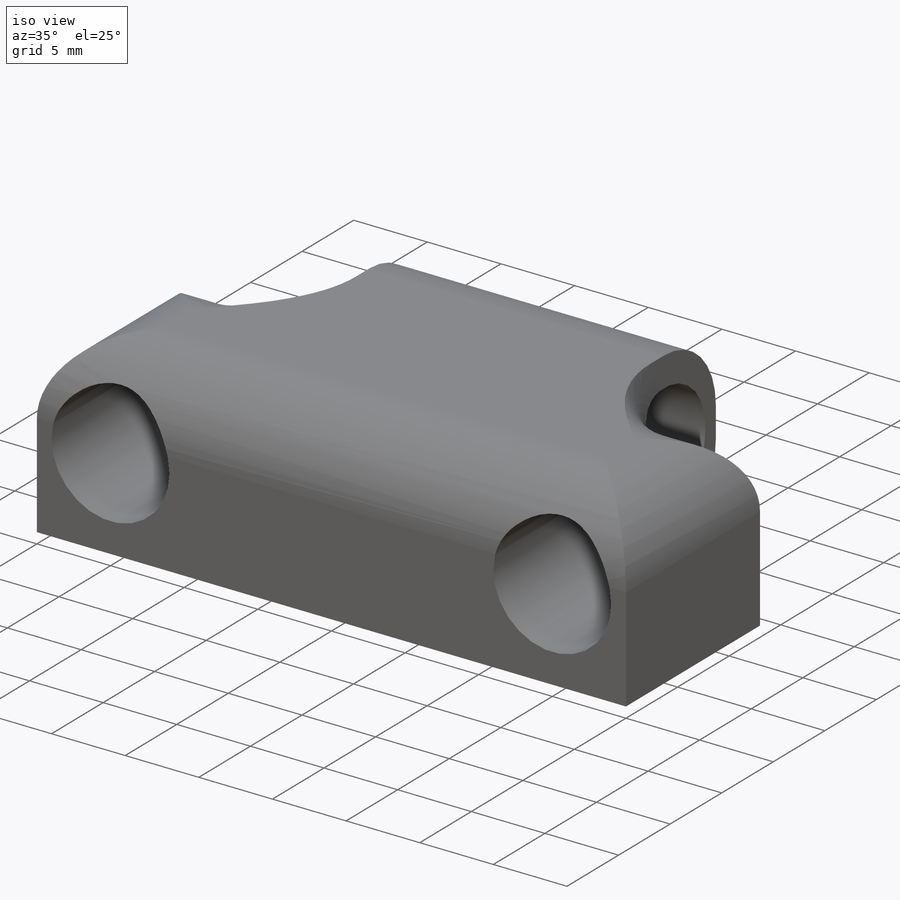
[diagram: iso view]
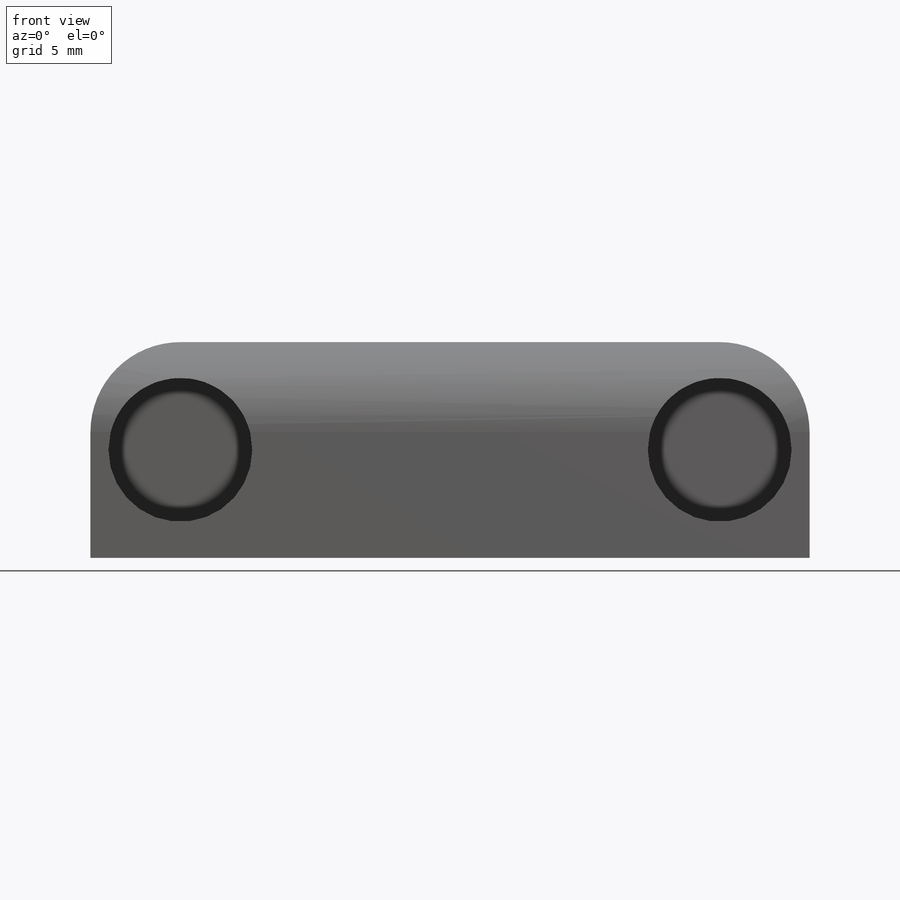
[diagram: front view]
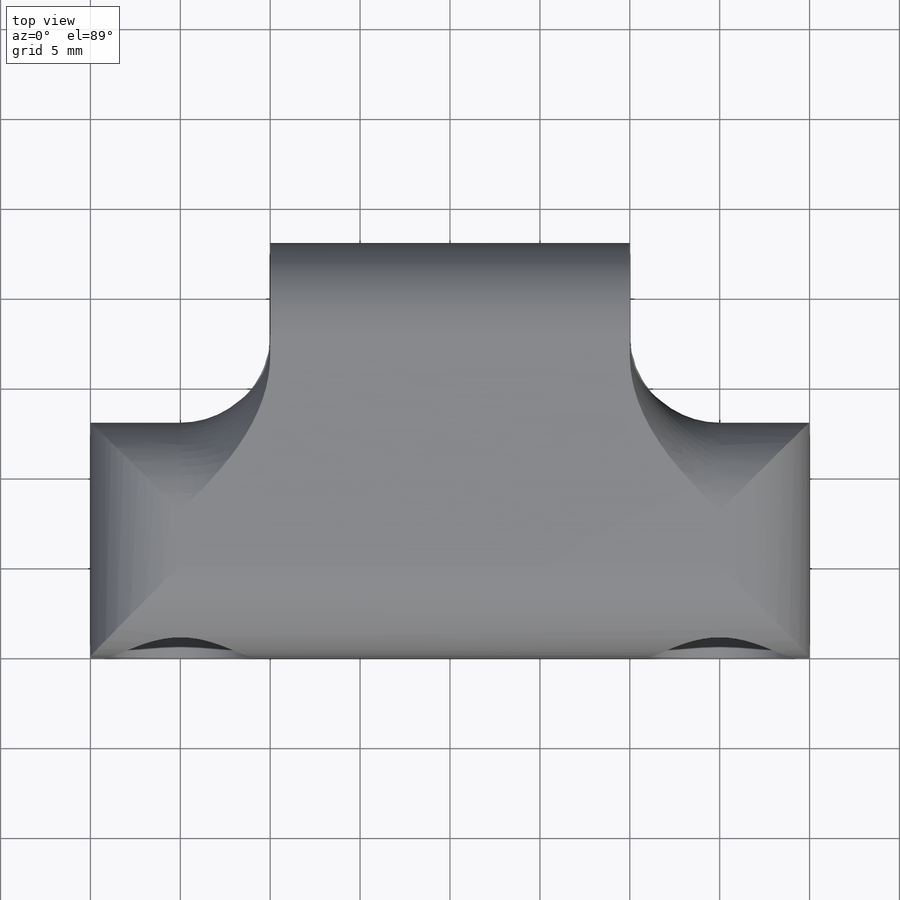
[diagram: top view]
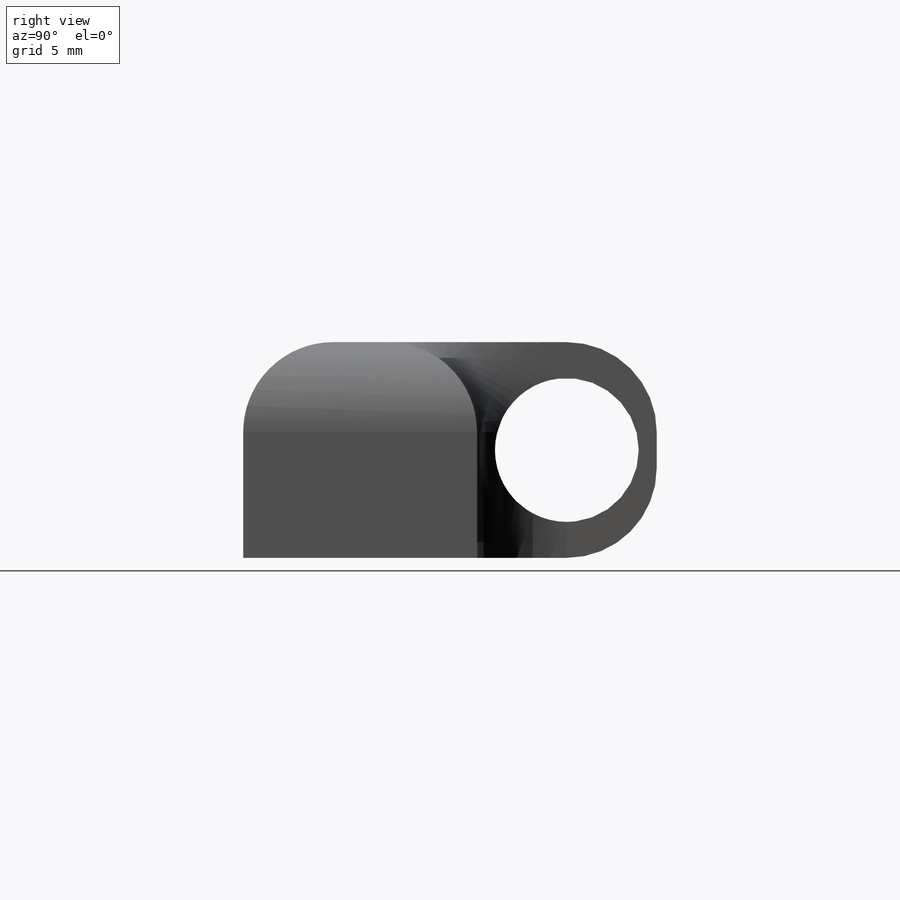
[diagram: right view]
SOLIDWORKS PART (.sldprt)
format: sldprt  version: not decoded by parser v0  size: 299,008 bytes
history: native  units: mm
features: sketch x5, extrude x3, fillet x3, cut_extrude x2, material x1 (+13 scaffold rows collapsed)
feature tree (27):
  scaffold x13  (default folders/planes/origin — collapsed)
  material  "Material <not specified>"
  sketch  "Sketch1"  dims[D1=8.0mm D2=30.0mm D3=15.0mm D4=0.0mm D5=40.0mm D6=12.0mm]
  extrude  "Boss-Extrude1"  Depth=10mm
  sketch  "Sketch2"
  extrude  "Boss-Extrude2"  Depth=3mm
  sketch  "Sketch3"  dims[D1=20.0mm]
  extrude  "Boss-Extrude3"  Depth=10mm
  sketch  "Sketch4"  dims[D1=6.0mm D2=5.0mm]
  cut_extrude  "Cut-Extrude2"  Depth=100mm
  fillet  "Fillet1"  Radius=5mm
  fillet  "Fillet2"  Radius=5mm
  fillet  "Fillet3"  Radius=5mm
  sketch  "Sketch6"  dims[D1=~3.822849mm]
  cut_extrude  "Cut-Extrude3"  Depth=100mm
decode coverage: 12 of 13 modeling features carry decoded parameters
note: ~ marks probable driven/reference dimensions
note: suppression state not decoded; provenance and decode notes live in map.json
